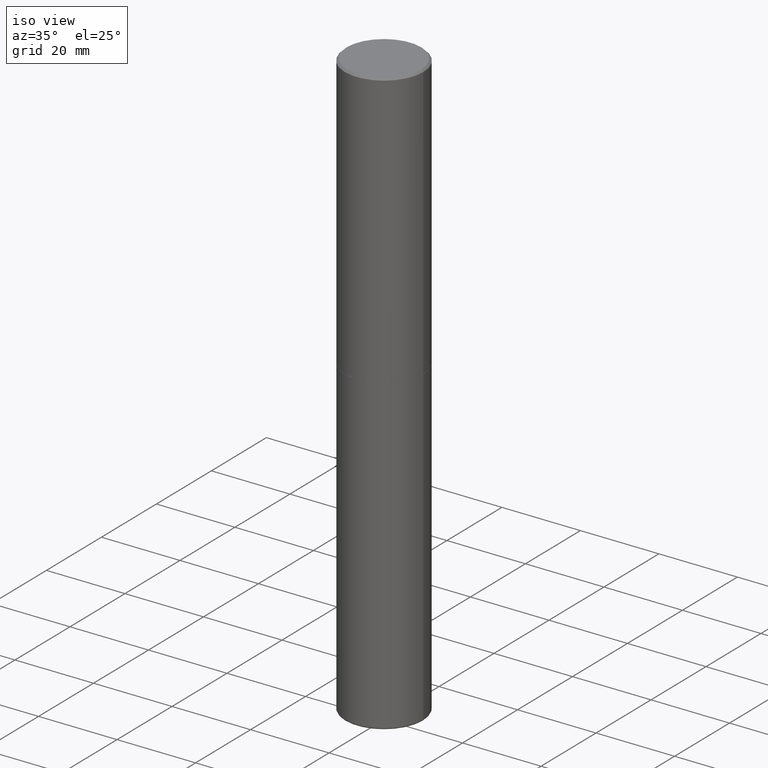
[diagram: clean part render]
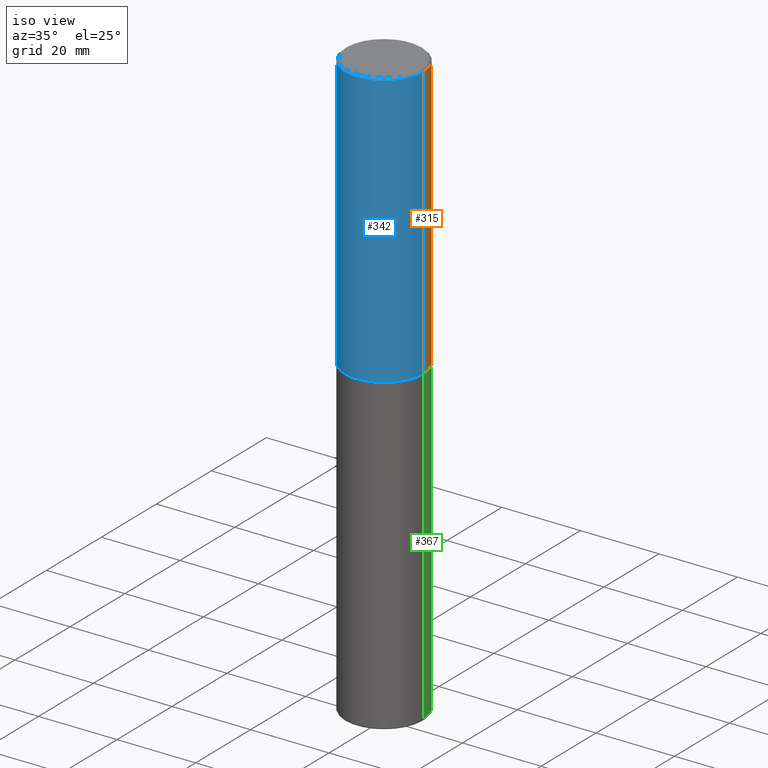
[diagram: same view with three faces highlighted in distinct colors, each labeled with its STEP entity id]
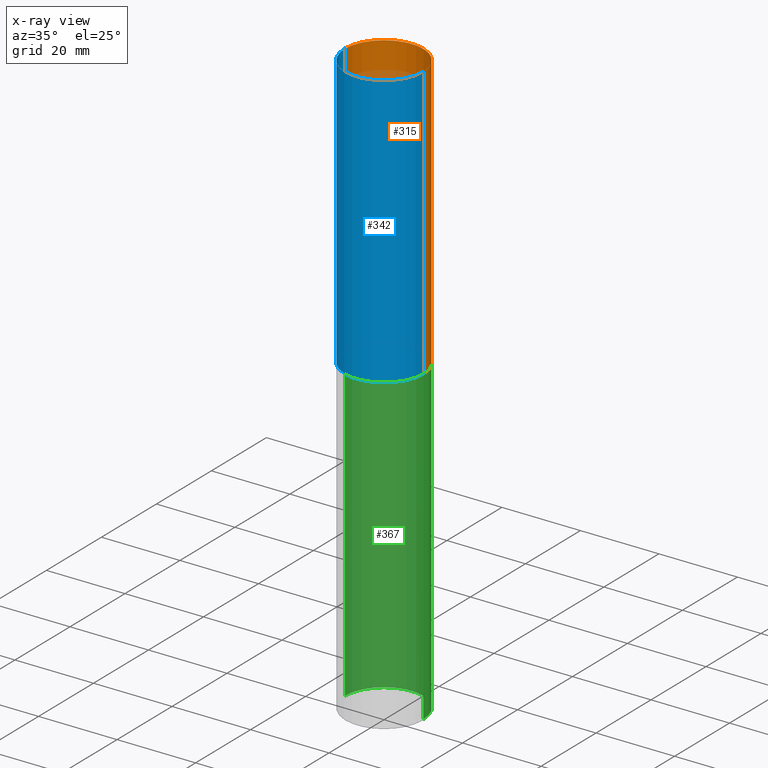
[diagram: x-ray of the same camera — body ghosted, the three highlighted faces saturated]
A machine part, iso view with three faces highlighted in distinct colors.
The next image is the same camera in x-ray (body ghosted, the three faces saturated) — at least one of them is partly hidden behind the body in this view.
Their STEP definitions:

[orange] entity #315 — the highlighted cylindrical surface (partial cylindrical patch) has radius 10 mm, axis along (-0, 0, 1).
#3 = AXIS2_PLACEMENT_3D ( 'NONE', #261, #307, #238 ) ;
#32 = EDGE_CURVE ( 'NONE', #101, #320, #309, .T. ) ;
#34 = VERTEX_POINT ( 'NONE', #232 ) ;
#60 = DIRECTION ( 'NONE',  ( -2.445468806185136877E-29, 3.491481338843145188E-15, 1.000000000000000000 ) ) ;
#65 = ORIENTED_EDGE ( 'NONE', *, *, #103, .T. ) ;
#88 = DIRECTION ( 'NONE',  ( -2.445468806185136877E-29, 3.491481338843145188E-15, 1.000000000000000000 ) ) ;
#98 = FACE_OUTER_BOUND ( 'NONE', #351, .T. ) ;
#101 = VERTEX_POINT ( 'NONE', #214 ) ;
#103 = EDGE_CURVE ( 'NONE', #320, #34, #120, .T. ) ;
#120 = LINE ( 'NONE', #403, #300 ) ;
#140 = ORIENTED_EDGE ( 'NONE', *, *, #198, .F. ) ;
#147 = CARTESIAN_POINT ( 'NONE',  ( 0.3937000000000002164, -2.749192406205084794E-15, 1.919750796630861012E-29 ) ) ;
#153 = LINE ( 'NONE', #147, #272 ) ;
#171 = DIRECTION ( 'NONE',  ( 1.000000000000000000, -6.982962677686265922E-15, 0.000000000000000000 ) ) ;
#174 = CYLINDRICAL_SURFACE ( 'NONE', #273, 0.3937000000000002164 ) ;
#198 = EDGE_CURVE ( 'NONE', #101, #254, #153, .T. ) ;
#214 = CARTESIAN_POINT ( 'NONE',  ( 0.3937000000000004385, -1.236787434658406144E-14, -2.754899999999998350 ) ) ;
#232 = CARTESIAN_POINT ( 'NONE',  ( -0.3937000000000000499, 2.679362779428219918E-15, -0.02000000000000008715 ) ) ;
#236 = ORIENTED_EDGE ( 'NONE', *, *, #32, .T. ) ;
#238 = DIRECTION ( 'NONE',  ( 1.000000000000000000, -6.982962677686265922E-15, 0.000000000000000000 ) ) ;
#241 = CARTESIAN_POINT ( 'NONE',  ( 4.890937612370294178E-31, -6.982962677686321191E-17, -0.02000000000000008715 ) ) ;
#245 = DIRECTION ( 'NONE',  ( 1.000000000000000000, -6.982962677686266711E-15, 4.876176775795935793E-29 ) ) ;
#254 = VERTEX_POINT ( 'NONE', #331 ) ;
#261 = CARTESIAN_POINT ( 'NONE',  ( 6.737022014159429266E-29, -9.618681940378976650E-15, -2.754899999999998350 ) ) ;
#266 = EDGE_CURVE ( 'NONE', #254, #34, #327, .T. ) ;
#268 = CARTESIAN_POINT ( 'NONE',  ( 0.000000000000000000, 0.000000000000000000, 0.000000000000000000 ) ) ;
#272 = VECTOR ( 'NONE', #60, 39.37007874015748143 ) ;
#273 = AXIS2_PLACEMENT_3D ( 'NONE', #268, #297, #245 ) ;
#297 = DIRECTION ( 'NONE',  ( -2.445468806185136597E-29, 3.491481338843145583E-15, 1.000000000000000000 ) ) ;
#300 = VECTOR ( 'NONE', #88, 39.37007874015748143 ) ;
#307 = DIRECTION ( 'NONE',  ( -2.445468806185136597E-29, 3.491481338843145583E-15, 1.000000000000000000 ) ) ;
#309 = CIRCLE ( 'NONE', #3, 0.3937000000000004385 ) ;
#315 = ADVANCED_FACE ( 'NONE', ( #98 ), #174, .T. ) ;
#320 = VERTEX_POINT ( 'NONE', #398 ) ;
#327 = CIRCLE ( 'NONE', #346, 0.3937000000000000499 ) ;
#331 = CARTESIAN_POINT ( 'NONE',  ( 0.3937000000000000499, -2.770807688499515734E-15, -0.02000000000000008715 ) ) ;
#346 = AXIS2_PLACEMENT_3D ( 'NONE', #241, #368, #171 ) ;
#351 = EDGE_LOOP ( 'NONE', ( #236, #65, #354, #140 ) ) ;
#354 = ORIENTED_EDGE ( 'NONE', *, *, #266, .F. ) ;
#368 = DIRECTION ( 'NONE',  ( -2.445468806185136597E-29, 3.491481338843145583E-15, 1.000000000000000000 ) ) ;
#398 = CARTESIAN_POINT ( 'NONE',  ( -0.3937000000000004385, -2.046849032890400849E-15, -2.754899999999998350 ) ) ;
#403 = CARTESIAN_POINT ( 'NONE',  ( -0.3937000000000002164, 2.797406750687515970E-15, -1.936584745033357576E-29 ) ) ;

[blue] entity #342 — the highlighted cylindrical surface (partial cylindrical patch) has radius 10 mm, axis along (-0, 0, 1).
#9 = DIRECTION ( 'NONE',  ( -2.445468806185136597E-29, 3.491481338843145583E-15, 1.000000000000000000 ) ) ;
#14 = CARTESIAN_POINT ( 'NONE',  ( 0.000000000000000000, 0.000000000000000000, 0.000000000000000000 ) ) ;
#30 = CIRCLE ( 'NONE', #130, 0.3937000000000004385 ) ;
#34 = VERTEX_POINT ( 'NONE', #232 ) ;
#55 = DIRECTION ( 'NONE',  ( -2.445468806185136597E-29, 3.491481338843145583E-15, 1.000000000000000000 ) ) ;
#60 = DIRECTION ( 'NONE',  ( -2.445468806185136877E-29, 3.491481338843145188E-15, 1.000000000000000000 ) ) ;
#88 = DIRECTION ( 'NONE',  ( -2.445468806185136877E-29, 3.491481338843145188E-15, 1.000000000000000000 ) ) ;
#101 = VERTEX_POINT ( 'NONE', #214 ) ;
#103 = EDGE_CURVE ( 'NONE', #320, #34, #120, .T. ) ;
#111 = ORIENTED_EDGE ( 'NONE', *, *, #103, .F. ) ;
#120 = LINE ( 'NONE', #403, #300 ) ;
#126 = DIRECTION ( 'NONE',  ( 1.000000000000000000, -6.982962677686265922E-15, 0.000000000000000000 ) ) ;
#130 = AXIS2_PLACEMENT_3D ( 'NONE', #355, #9, #138 ) ;
#138 = DIRECTION ( 'NONE',  ( 1.000000000000000000, -6.982962677686265922E-15, 0.000000000000000000 ) ) ;
#141 = DIRECTION ( 'NONE',  ( -2.445468806185136597E-29, 3.491481338843145583E-15, 1.000000000000000000 ) ) ;
#147 = CARTESIAN_POINT ( 'NONE',  ( 0.3937000000000002164, -2.749192406205084794E-15, 1.919750796630861012E-29 ) ) ;
#153 = LINE ( 'NONE', #147, #272 ) ;
#157 = EDGE_CURVE ( 'NONE', #34, #254, #158, .T. ) ;
#158 = CIRCLE ( 'NONE', #392, 0.3937000000000000499 ) ;
#159 = EDGE_LOOP ( 'NONE', ( #111, #359, #323, #384 ) ) ;
#198 = EDGE_CURVE ( 'NONE', #101, #254, #153, .T. ) ;
#214 = CARTESIAN_POINT ( 'NONE',  ( 0.3937000000000004385, -1.236787434658406144E-14, -2.754899999999998350 ) ) ;
#232 = CARTESIAN_POINT ( 'NONE',  ( -0.3937000000000000499, 2.679362779428219918E-15, -0.02000000000000008715 ) ) ;
#239 = CYLINDRICAL_SURFACE ( 'NONE', #282, 0.3937000000000002164 ) ;
#254 = VERTEX_POINT ( 'NONE', #331 ) ;
#271 = FACE_OUTER_BOUND ( 'NONE', #159, .T. ) ;
#272 = VECTOR ( 'NONE', #60, 39.37007874015748143 ) ;
#282 = AXIS2_PLACEMENT_3D ( 'NONE', #14, #141, #404 ) ;
#300 = VECTOR ( 'NONE', #88, 39.37007874015748143 ) ;
#320 = VERTEX_POINT ( 'NONE', #398 ) ;
#323 = ORIENTED_EDGE ( 'NONE', *, *, #198, .T. ) ;
#331 = CARTESIAN_POINT ( 'NONE',  ( 0.3937000000000000499, -2.770807688499515734E-15, -0.02000000000000008715 ) ) ;
#342 = ADVANCED_FACE ( 'NONE', ( #271 ), #239, .T. ) ;
#343 = CARTESIAN_POINT ( 'NONE',  ( 4.890937612370294178E-31, -6.982962677686321191E-17, -0.02000000000000008715 ) ) ;
#352 = EDGE_CURVE ( 'NONE', #320, #101, #30, .T. ) ;
#355 = CARTESIAN_POINT ( 'NONE',  ( 6.737022014159429266E-29, -9.618681940378976650E-15, -2.754899999999998350 ) ) ;
#359 = ORIENTED_EDGE ( 'NONE', *, *, #352, .T. ) ;
#384 = ORIENTED_EDGE ( 'NONE', *, *, #157, .F. ) ;
#392 = AXIS2_PLACEMENT_3D ( 'NONE', #343, #55, #126 ) ;
#398 = CARTESIAN_POINT ( 'NONE',  ( -0.3937000000000004385, -2.046849032890400849E-15, -2.754899999999998350 ) ) ;
#403 = CARTESIAN_POINT ( 'NONE',  ( -0.3937000000000002164, 2.797406750687515970E-15, -1.936584745033357576E-29 ) ) ;
#404 = DIRECTION ( 'NONE',  ( 1.000000000000000000, -6.982962677686266711E-15, 4.876176775795935793E-29 ) ) ;

[green] entity #367 — the highlighted cylindrical surface (partial cylindrical patch) has radius 10 mm, axis along (-0, 0, 1).
#13 = DIRECTION ( 'NONE',  ( -2.445468806185136877E-29, 3.491481338843145188E-15, 1.000000000000000000 ) ) ;
#23 = CYLINDRICAL_SURFACE ( 'NONE', #413, 0.3936999999999999389 ) ;
#25 = CARTESIAN_POINT ( 'NONE',  ( -0.3936999999999996613, -1.775275411347546994E-14, -5.885799999999998811 ) ) ;
#36 = EDGE_CURVE ( 'NONE', #72, #305, #353, .T. ) ;
#46 = CARTESIAN_POINT ( 'NONE',  ( 0.3936999999999999389, -2.749192406205082822E-15, 1.919750796630859611E-29 ) ) ;
#49 = FACE_OUTER_BOUND ( 'NONE', #289, .T. ) ;
#68 = EDGE_CURVE ( 'NONE', #257, #72, #195, .T. ) ;
#72 = VERTEX_POINT ( 'NONE', #25 ) ;
#74 = ORIENTED_EDGE ( 'NONE', *, *, #36, .T. ) ;
#82 = CIRCLE ( 'NONE', #386, 0.3937000000000000499 ) ;
#84 = DIRECTION ( 'NONE',  ( 1.000000000000000000, -6.982962677686267499E-15, 0.000000000000000000 ) ) ;
#106 = AXIS2_PLACEMENT_3D ( 'NONE', #215, #281, #369 ) ;
#117 = DIRECTION ( 'NONE',  ( -2.445468806185136597E-29, 3.491481338843145583E-15, 1.000000000000000000 ) ) ;
#172 = VECTOR ( 'NONE', #401, 39.37007874015748143 ) ;
#195 = CIRCLE ( 'NONE', #106, 0.3936999999999999389 ) ;
#201 = ORIENTED_EDGE ( 'NONE', *, *, #68, .T. ) ;
#208 = LINE ( 'NONE', #46, #172 ) ;
#210 = VECTOR ( 'NONE', #13, 39.37007874015748143 ) ;
#211 = ORIENTED_EDGE ( 'NONE', *, *, #276, .F. ) ;
#213 = EDGE_CURVE ( 'NONE', #361, #305, #82, .T. ) ;
#215 = CARTESIAN_POINT ( 'NONE',  ( 1.439354029944447260E-28, -2.055016086416298394E-14, -5.885799999999998811 ) ) ;
#216 = CARTESIAN_POINT ( 'NONE',  ( -0.3937000000000000499, -1.228876039225288859E-14, -2.755899999999998240 ) ) ;
#247 = DIRECTION ( 'NONE',  ( -2.445468806185136597E-29, 3.491481338843145583E-15, 1.000000000000000000 ) ) ;
#257 = VERTEX_POINT ( 'NONE', #306 ) ;
#262 = ORIENTED_EDGE ( 'NONE', *, *, #213, .F. ) ;
#263 = CARTESIAN_POINT ( 'NONE',  ( -0.3936999999999999389, 2.797406750687513998E-15, -1.936584745033356455E-29 ) ) ;
#276 = EDGE_CURVE ( 'NONE', #257, #361, #208, .T. ) ;
#281 = DIRECTION ( 'NONE',  ( -2.445468806185136597E-29, 3.491481338843145583E-15, 1.000000000000000000 ) ) ;
#285 = CARTESIAN_POINT ( 'NONE',  ( 6.739467482965614869E-29, -9.622173421717819657E-15, -2.755899999999998240 ) ) ;
#289 = EDGE_LOOP ( 'NONE', ( #201, #74, #262, #211 ) ) ;
#305 = VERTEX_POINT ( 'NONE', #216 ) ;
#306 = CARTESIAN_POINT ( 'NONE',  ( 0.3936999999999996613, -2.329935327036806400E-14, -5.885799999999998811 ) ) ;
#353 = LINE ( 'NONE', #263, #210 ) ;
#361 = VERTEX_POINT ( 'NONE', #362 ) ;
#362 = CARTESIAN_POINT ( 'NONE',  ( 0.3937000000000000499, -1.237136582792290287E-14, -2.755899999999998240 ) ) ;
#367 = ADVANCED_FACE ( 'NONE', ( #49 ), #23, .T. ) ;
#369 = DIRECTION ( 'NONE',  ( 1.000000000000000000, -6.982962677686269866E-15, 0.000000000000000000 ) ) ;
#370 = DIRECTION ( 'NONE',  ( 1.000000000000000000, -6.982962677686266711E-15, 4.876176775795935793E-29 ) ) ;
#386 = AXIS2_PLACEMENT_3D ( 'NONE', #285, #247, #84 ) ;
#401 = DIRECTION ( 'NONE',  ( -2.445468806185136877E-29, 3.491481338843145188E-15, 1.000000000000000000 ) ) ;
#409 = CARTESIAN_POINT ( 'NONE',  ( 0.000000000000000000, 0.000000000000000000, 0.000000000000000000 ) ) ;
#413 = AXIS2_PLACEMENT_3D ( 'NONE', #409, #117, #370 ) ;